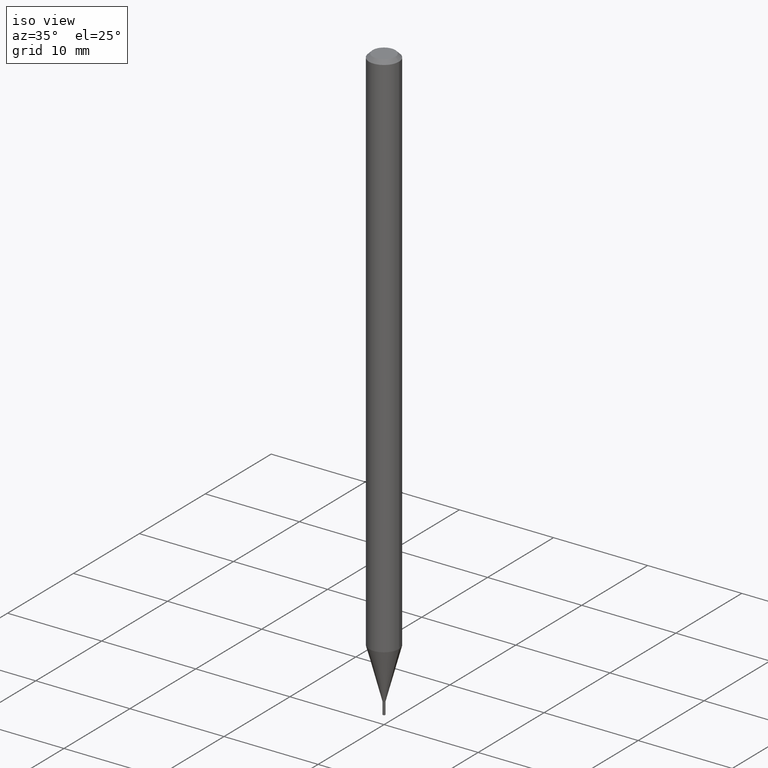
[diagram: clean part render]
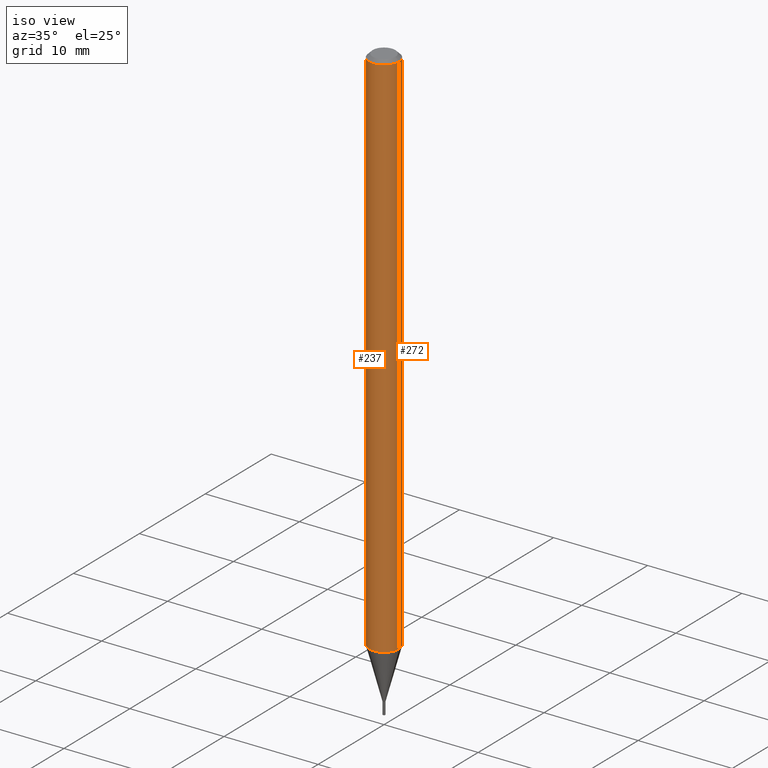
[diagram: same view with one multi-face feature highlighted, each face labeled with its STEP entity id]
A machine part, iso view. The highlighted faces form ONE feature: a constant-radius fillet chain: 2 tangent blend faces with common blend radius 1.5875 mm. The faces share edges in the B-rep.
Their STEP definitions:
[1] entity #272 (Cylinder):
#32 = CYLINDRICAL_SURFACE ( 'NONE', #111, 0.06250000000000000000 ) ;
#44 = DIRECTION ( 'NONE',  ( 1.000000000000000000, -6.982962677686262766E-15, 0.000000000000000000 ) ) ;
#45 = CARTESIAN_POINT ( 'NONE',  ( 0.06250000000000000000, -4.888073874380388472E-16, -0.01499999999999999944 ) ) ;
#53 = VECTOR ( 'NONE', #390, 39.37007874015748143 ) ;
#71 = CARTESIAN_POINT ( 'NONE',  ( 3.668203209277705088E-31, -5.237222008264718399E-17, -0.01499999999999999944 ) ) ;
#72 = EDGE_CURVE ( 'NONE', #213, #420, #329, .T. ) ;
#75 = DIRECTION ( 'NONE',  ( -2.445468806185136597E-29, 3.491481338843145583E-15, 1.000000000000000000 ) ) ;
#90 = DIRECTION ( 'NONE',  ( -2.445468806185136877E-29, 3.491481338843145188E-15, 1.000000000000000000 ) ) ;
#91 = CARTESIAN_POINT ( 'NONE',  ( -0.06250000000000000000, -7.360792889676777374E-15, -2.235407078564790595 ) ) ;
#93 = VECTOR ( 'NONE', #90, 39.37007874015748143 ) ;
#98 = DIRECTION ( 'NONE',  ( -2.445468806185136597E-29, 3.491481338843145583E-15, 1.000000000000000000 ) ) ;
#105 = CARTESIAN_POINT ( 'NONE',  ( 0.06250000000000000000, -4.364351673553916694E-16, 3.047610484872459871E-30 ) ) ;
#111 = AXIS2_PLACEMENT_3D ( 'NONE', #283, #98, #246 ) ;
#121 = ORIENTED_EDGE ( 'NONE', *, *, #72, .F. ) ;
#130 = EDGE_CURVE ( 'NONE', #420, #389, #159, .T. ) ;
#140 = VERTEX_POINT ( 'NONE', #91 ) ;
#152 = CIRCLE ( 'NONE', #415, 0.06250000000000000000 ) ;
#159 = CIRCLE ( 'NONE', #274, 0.06250000000000000000 ) ;
#172 = CARTESIAN_POINT ( 'NONE',  ( -0.06250000000000000000, 4.440892098500626162E-16, -3.074334431409316114E-30 ) ) ;
#199 = ORIENTED_EDGE ( 'NONE', *, *, #130, .F. ) ;
#213 = VERTEX_POINT ( 'NONE', #352 ) ;
#220 = DIRECTION ( 'NONE',  ( -2.445468806185136597E-29, 3.491481338843145583E-15, 1.000000000000000000 ) ) ;
#225 = DIRECTION ( 'NONE',  ( 1.000000000000000000, -6.982962677686266711E-15, 0.000000000000000000 ) ) ;
#246 = DIRECTION ( 'NONE',  ( 1.000000000000000000, -6.982962677686266711E-15, 4.876176775795935793E-29 ) ) ;
#272 = ADVANCED_FACE ( 'NONE', ( #459 ), #32, .T. ) ;
#274 = AXIS2_PLACEMENT_3D ( 'NONE', #71, #220, #225 ) ;
#283 = CARTESIAN_POINT ( 'NONE',  ( 0.000000000000000000, 0.000000000000000000, 0.000000000000000000 ) ) ;
#309 = EDGE_LOOP ( 'NONE', ( #417, #315, #199, #121 ) ) ;
#313 = LINE ( 'NONE', #172, #93 ) ;
#315 = ORIENTED_EDGE ( 'NONE', *, *, #401, .T. ) ;
#329 = LINE ( 'NONE', #105, #53 ) ;
#348 = CARTESIAN_POINT ( 'NONE',  ( -0.06250000000000000000, -3.484537949954681116E-15, -0.01499999999999999944 ) ) ;
#352 = CARTESIAN_POINT ( 'NONE',  ( 0.06250000000000000000, -8.241317266882231660E-15, -2.235407078564790595 ) ) ;
#363 = CARTESIAN_POINT ( 'NONE',  ( 5.466618279755642309E-29, -7.804882099526839990E-15, -2.235407078564790595 ) ) ;
#389 = VERTEX_POINT ( 'NONE', #348 ) ;
#390 = DIRECTION ( 'NONE',  ( -2.445468806185136877E-29, 3.491481338843145188E-15, 1.000000000000000000 ) ) ;
#401 = EDGE_CURVE ( 'NONE', #140, #389, #313, .T. ) ;
#415 = AXIS2_PLACEMENT_3D ( 'NONE', #363, #75, #44 ) ;
#417 = ORIENTED_EDGE ( 'NONE', *, *, #466, .T. ) ;
#420 = VERTEX_POINT ( 'NONE', #45 ) ;
#459 = FACE_OUTER_BOUND ( 'NONE', #309, .T. ) ;
#466 = EDGE_CURVE ( 'NONE', #213, #140, #152, .T. ) ;
[2] entity #237 (Cylinder):
#4 = DIRECTION ( 'NONE',  ( 1.000000000000000000, -6.982962677686262766E-15, 0.000000000000000000 ) ) ;
#31 = CARTESIAN_POINT ( 'NONE',  ( 0.000000000000000000, 0.000000000000000000, 0.000000000000000000 ) ) ;
#45 = CARTESIAN_POINT ( 'NONE',  ( 0.06250000000000000000, -4.888073874380388472E-16, -0.01499999999999999944 ) ) ;
#52 = ORIENTED_EDGE ( 'NONE', *, *, #72, .T. ) ;
#53 = VECTOR ( 'NONE', #390, 39.37007874015748143 ) ;
#69 = DIRECTION ( 'NONE',  ( -2.445468806185136597E-29, 3.491481338843145583E-15, 1.000000000000000000 ) ) ;
#72 = EDGE_CURVE ( 'NONE', #213, #420, #329, .T. ) ;
#74 = AXIS2_PLACEMENT_3D ( 'NONE', #435, #359, #4 ) ;
#90 = DIRECTION ( 'NONE',  ( -2.445468806185136877E-29, 3.491481338843145188E-15, 1.000000000000000000 ) ) ;
#91 = CARTESIAN_POINT ( 'NONE',  ( -0.06250000000000000000, -7.360792889676777374E-15, -2.235407078564790595 ) ) ;
#93 = VECTOR ( 'NONE', #90, 39.37007874015748143 ) ;
#105 = CARTESIAN_POINT ( 'NONE',  ( 0.06250000000000000000, -4.364351673553916694E-16, 3.047610484872459871E-30 ) ) ;
#127 = CIRCLE ( 'NONE', #265, 0.06250000000000000000 ) ;
#140 = VERTEX_POINT ( 'NONE', #91 ) ;
#153 = EDGE_CURVE ( 'NONE', #389, #420, #127, .T. ) ;
#172 = CARTESIAN_POINT ( 'NONE',  ( -0.06250000000000000000, 4.440892098500626162E-16, -3.074334431409316114E-30 ) ) ;
#213 = VERTEX_POINT ( 'NONE', #352 ) ;
#237 = ADVANCED_FACE ( 'NONE', ( #424 ), #317, .T. ) ;
#245 = DIRECTION ( 'NONE',  ( 1.000000000000000000, -6.982962677686266711E-15, 4.876176775795935793E-29 ) ) ;
#251 = CARTESIAN_POINT ( 'NONE',  ( 3.668203209277705088E-31, -5.237222008264718399E-17, -0.01499999999999999944 ) ) ;
#265 = AXIS2_PLACEMENT_3D ( 'NONE', #251, #428, #358 ) ;
#292 = AXIS2_PLACEMENT_3D ( 'NONE', #31, #69, #245 ) ;
#313 = LINE ( 'NONE', #172, #93 ) ;
#317 = CYLINDRICAL_SURFACE ( 'NONE', #292, 0.06250000000000000000 ) ;
#329 = LINE ( 'NONE', #105, #53 ) ;
#348 = CARTESIAN_POINT ( 'NONE',  ( -0.06250000000000000000, -3.484537949954681116E-15, -0.01499999999999999944 ) ) ;
#349 = ORIENTED_EDGE ( 'NONE', *, *, #153, .F. ) ;
#352 = CARTESIAN_POINT ( 'NONE',  ( 0.06250000000000000000, -8.241317266882231660E-15, -2.235407078564790595 ) ) ;
#355 = CIRCLE ( 'NONE', #74, 0.06250000000000000000 ) ;
#357 = ORIENTED_EDGE ( 'NONE', *, *, #451, .T. ) ;
#358 = DIRECTION ( 'NONE',  ( 1.000000000000000000, -6.982962677686266711E-15, 0.000000000000000000 ) ) ;
#359 = DIRECTION ( 'NONE',  ( -2.445468806185136597E-29, 3.491481338843145583E-15, 1.000000000000000000 ) ) ;
#373 = EDGE_LOOP ( 'NONE', ( #437, #357, #52, #349 ) ) ;
#389 = VERTEX_POINT ( 'NONE', #348 ) ;
#390 = DIRECTION ( 'NONE',  ( -2.445468806185136877E-29, 3.491481338843145188E-15, 1.000000000000000000 ) ) ;
#401 = EDGE_CURVE ( 'NONE', #140, #389, #313, .T. ) ;
#420 = VERTEX_POINT ( 'NONE', #45 ) ;
#424 = FACE_OUTER_BOUND ( 'NONE', #373, .T. ) ;
#428 = DIRECTION ( 'NONE',  ( -2.445468806185136597E-29, 3.491481338843145583E-15, 1.000000000000000000 ) ) ;
#435 = CARTESIAN_POINT ( 'NONE',  ( 5.466618279755642309E-29, -7.804882099526839990E-15, -2.235407078564790595 ) ) ;
#437 = ORIENTED_EDGE ( 'NONE', *, *, #401, .F. ) ;
#451 = EDGE_CURVE ( 'NONE', #140, #213, #355, .T. ) ;